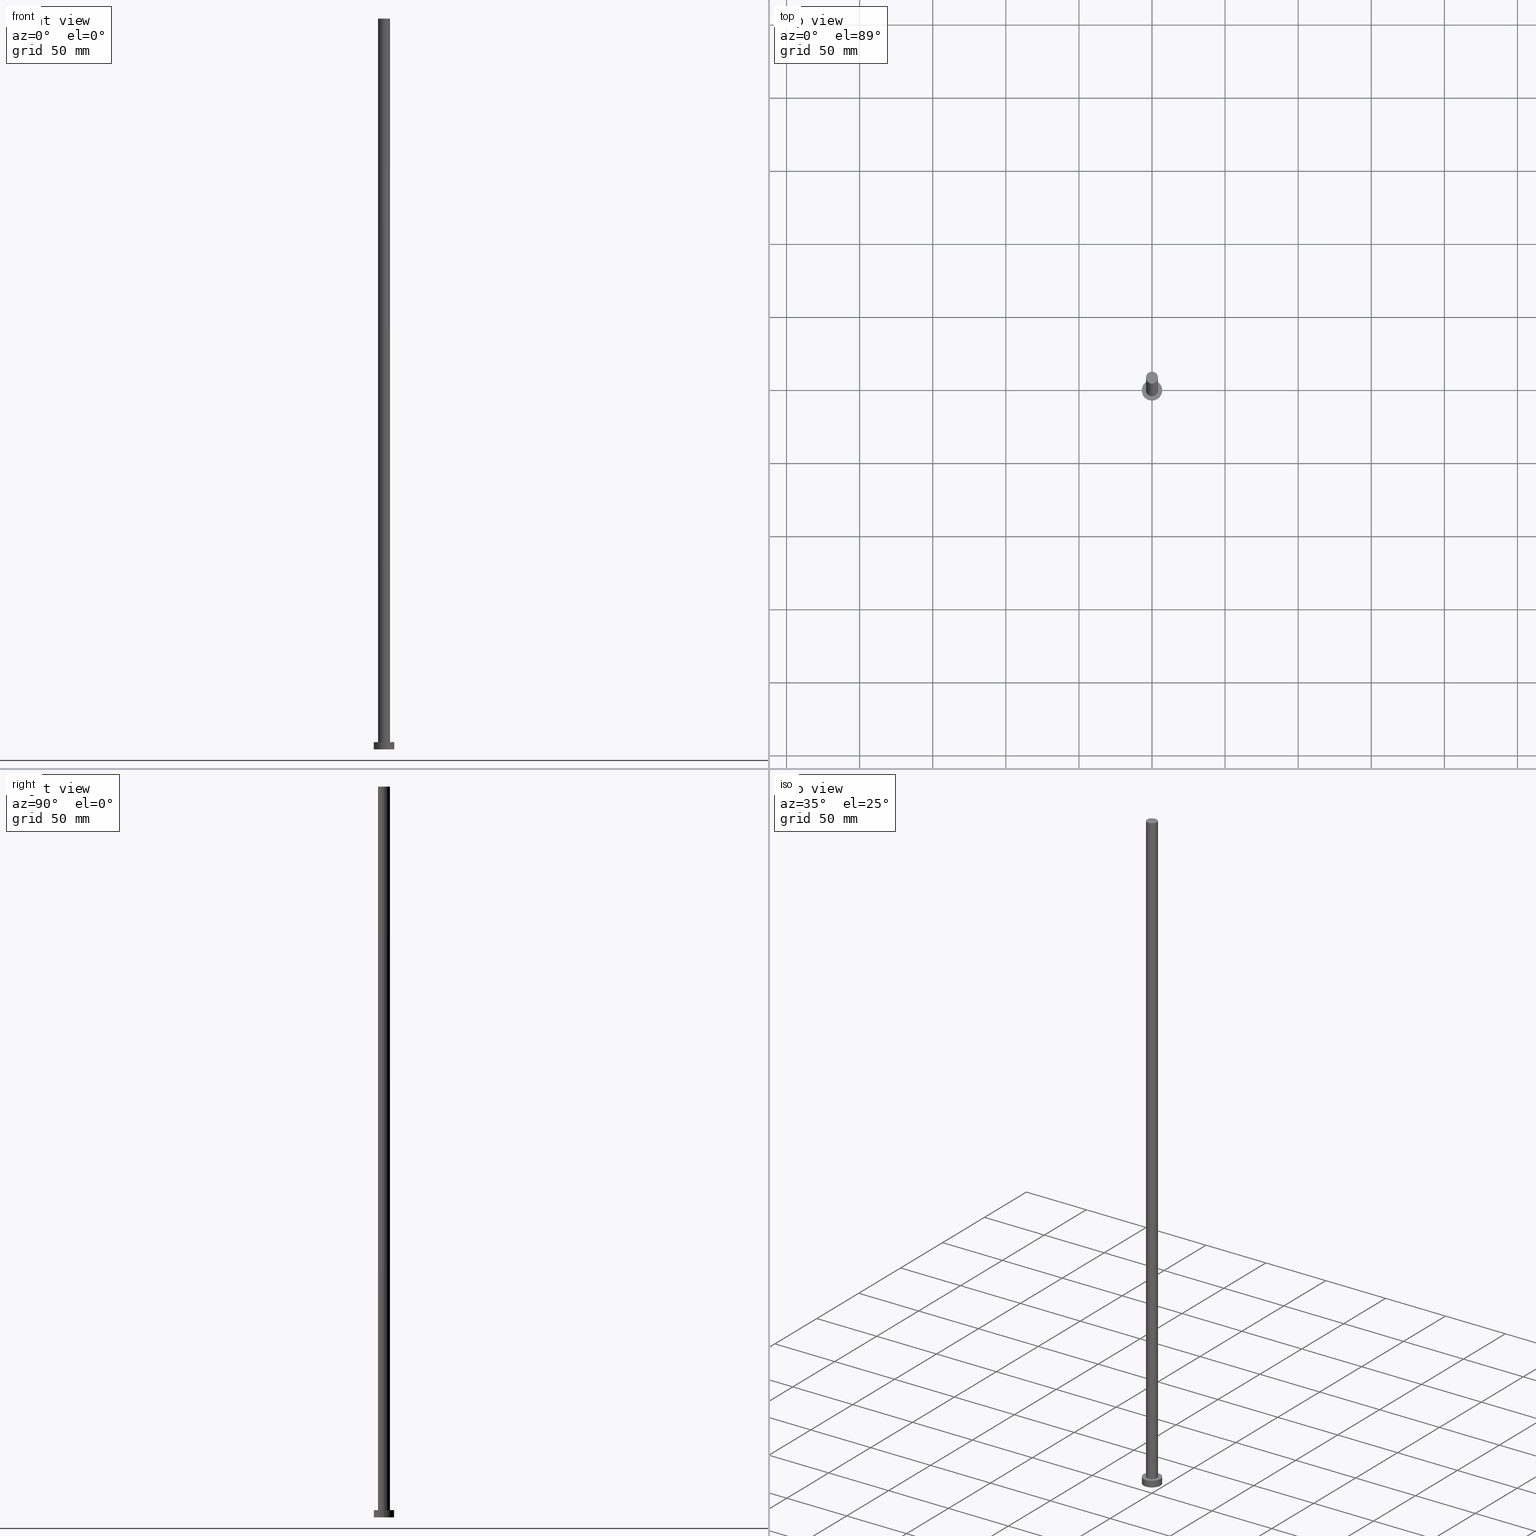
[diagram: canonical four-view strip — front | top / right | iso, engineering-drawing reading convention]
A machine part, canonical four-view strip (front | top / right | iso — engineering-drawing reading convention). The complete STEP part file that produces these views, byte-faithful:
ISO-10303-21;
HEADER;
FILE_DESCRIPTION (( 'STEP AP203' ),
    '1' );
FILE_NAME ('2462.STEP',
    '2023-02-13T14:20:28',
    ( '' ),
    ( '' ),
    'SwSTEP 2.0',
    'SolidWorks 2019',
    '' );
FILE_SCHEMA (( 'CONFIG_CONTROL_DESIGN' ));
ENDSEC;

DATA;
#1 = AXIS2_PLACEMENT_3D ( 'NONE', #229, #211, #12 ) ;
#2 = DIRECTION ( 'NONE',  ( -0.000000000000000000, -0.000000000000000000, -1.000000000000000000 ) ) ;
#3 = EDGE_CURVE ( 'NONE', #236, #104, #111, .T. ) ;
#4 = ORIENTED_EDGE ( 'NONE', *, *, #203, .F. ) ;
#5 = CARTESIAN_POINT ( 'NONE',  ( -4.099999999999999645, 0.000000000000000000, 5.000000000000000000 ) ) ;
#6 = VERTEX_POINT ( 'NONE', #63 ) ;
#7 = DIRECTION ( 'NONE',  ( 1.000000000000000000, 0.000000000000000000, 0.000000000000000000 ) ) ;
#8 = EDGE_CURVE ( 'NONE', #139, #104, #251, .T. ) ;
#9 = FACE_OUTER_BOUND ( 'NONE', #205, .T. ) ;
#10 = CARTESIAN_POINT ( 'NONE',  ( 0.000000000000000000, 0.000000000000000000, 500.0000000000000000 ) ) ;
#11 = ORIENTED_EDGE ( 'NONE', *, *, #99, .F. ) ;
#12 = DIRECTION ( 'NONE',  ( 1.000000000000000000, 0.000000000000000000, 0.000000000000000000 ) ) ;
#13 = PRODUCT ( '2462', '2462', '', ( #18 ) ) ;
#14 = APPROVAL_DATE_TIME ( #228, #135 ) ;
#15 = APPLICATION_PROTOCOL_DEFINITION ( 'international standard', 'config_control_design', 1994, #34 ) ;
#16 = PRODUCT_DEFINITION_SHAPE ( 'NONE', 'NONE',  #35 ) ;
#17 = COORDINATED_UNIVERSAL_TIME_OFFSET ( 1, 0, .AHEAD. ) ;
#18 = MECHANICAL_CONTEXT ( 'NONE', #34, 'mechanical' ) ;
#19 = AXIS2_PLACEMENT_3D ( 'NONE', #164, #244, #128 ) ;
#20 = PERSON_AND_ORGANIZATION ( #24, #101 ) ;
#21 = AXIS2_PLACEMENT_3D ( 'NONE', #112, #91, #242 ) ;
#22 = ORIENTED_EDGE ( 'NONE', *, *, #198, .T. ) ;
#23 = EDGE_LOOP ( 'NONE', ( #26, #246 ) ) ;
#24 = PERSON ( 'NEUR�EN�', 'NEUR�EN�', 'NEUR�EN�', ('NEUR�EN�'), ('NEUR�EN�'), ('NEUR�EN�') ) ;
#25 = CARTESIAN_POINT ( 'NONE',  ( 0.000000000000000000, 0.000000000000000000, 0.000000000000000000 ) ) ;
#26 = ORIENTED_EDGE ( 'NONE', *, *, #166, .T. ) ;
#27 = CARTESIAN_POINT ( 'NONE',  ( -4.099999999999999645, 0.000000000000000000, 500.0000000000000000 ) ) ;
#28 = ORIENTED_EDGE ( 'NONE', *, *, #240, .T. ) ;
#29 = DIRECTION ( 'NONE',  ( -1.000000000000000000, 0.000000000000000000, 0.000000000000000000 ) ) ;
#30 = EDGE_LOOP ( 'NONE', ( #11, #201, #130, #143 ) ) ;
#31 = CARTESIAN_POINT ( 'NONE',  ( 7.000000000000000000, 8.572527594031473190E-16, 5.000000000000000000 ) ) ;
#32 = DIRECTION ( 'NONE',  ( 1.000000000000000000, 0.000000000000000000, 0.000000000000000000 ) ) ;
#33 = ADVANCED_FACE ( 'NONE', ( #185 ), #66, .T. ) ;
#34 = APPLICATION_CONTEXT ( 'configuration controlled 3d designs of mechanical parts and assemblies' ) ;
#35 = PRODUCT_DEFINITION ( 'NEZN�M�', '', #83, #61 ) ;
#36 = APPROVAL_ROLE ( '' ) ;
#37 =( GEOMETRIC_REPRESENTATION_CONTEXT ( 3 ) GLOBAL_UNCERTAINTY_ASSIGNED_CONTEXT ( ( #218 ) ) GLOBAL_UNIT_ASSIGNED_CONTEXT ( ( #147, #115, #152 ) ) REPRESENTATION_CONTEXT ( 'NONE', 'WORKASPACE' ) );
#38 = ADVANCED_FACE ( 'NONE', ( #9 ), #199, .T. ) ;
#39 = CARTESIAN_POINT ( 'NONE',  ( 0.000000000000000000, 0.000000000000000000, 5.000000000000000000 ) ) ;
#40 = VERTEX_POINT ( 'NONE', #82 ) ;
#41 = CARTESIAN_POINT ( 'NONE',  ( 0.000000000000000000, 0.000000000000000000, 0.000000000000000000 ) ) ;
#42 = CIRCLE ( 'NONE', #181, 7.000000000000000000 ) ;
#43 = CC_DESIGN_SECURITY_CLASSIFICATION ( #58, ( #83 ) ) ;
#44 = EDGE_LOOP ( 'NONE', ( #126, #221 ) ) ;
#45 = CYLINDRICAL_SURFACE ( 'NONE', #21, 7.000000000000000000 ) ;
#46 = VERTEX_POINT ( 'NONE', #160 ) ;
#47 = DIRECTION ( 'NONE',  ( -1.000000000000000000, 0.000000000000000000, 0.000000000000000000 ) ) ;
#48 = AXIS2_PLACEMENT_3D ( 'NONE', #224, #114, #138 ) ;
#49 = ADVANCED_BREP_SHAPE_REPRESENTATION ( '2462', ( #196, #237 ), #37 ) ;
#50 = DIRECTION ( 'NONE',  ( 0.000000000000000000, 0.000000000000000000, 1.000000000000000000 ) ) ;
#51 = APPROVAL_PERSON_ORGANIZATION ( #20, #106, #36 ) ;
#52 = PERSON_AND_ORGANIZATION_ROLE ( 'design_owner' ) ;
#53 = APPROVAL_DATE_TIME ( #77, #253 ) ;
#54 = DATE_AND_TIME ( #232, #215 ) ;
#55 = CC_DESIGN_DATE_AND_TIME_ASSIGNMENT ( #54, #235, ( #35 ) ) ;
#56 = VECTOR ( 'NONE', #182, 1000.000000000000000 ) ;
#57 = PERSON_AND_ORGANIZATION_ROLE ( 'creator' ) ;
#58 = SECURITY_CLASSIFICATION ( '', '', #212 ) ;
#59 = VECTOR ( 'NONE', #248, 1000.000000000000000 ) ;
#60 = AXIS2_PLACEMENT_3D ( 'NONE', #39, #150, #169 ) ;
#61 = DESIGN_CONTEXT ( 'detailed design', #76, 'design' ) ;
#62 = PERSON_AND_ORGANIZATION ( #24, #101 ) ;
#63 = CARTESIAN_POINT ( 'NONE',  ( 7.000000000000000000, 8.572527594031473190E-16, 0.000000000000000000 ) ) ;
#64 = EDGE_LOOP ( 'NONE', ( #4, #183 ) ) ;
#65 = DIRECTION ( 'NONE',  ( 1.000000000000000000, 0.000000000000000000, 0.000000000000000000 ) ) ;
#66 = PLANE ( 'NONE',  #48 ) ;
#67 = AXIS2_PLACEMENT_3D ( 'NONE', #187, #2, #141 ) ;
#68 = CARTESIAN_POINT ( 'NONE',  ( 0.000000000000000000, 0.000000000000000000, 5.000000000000000000 ) ) ;
#69 = ORIENTED_EDGE ( 'NONE', *, *, #3, .T. ) ;
#70 = PLANE ( 'NONE',  #197 ) ;
#71 = ORIENTED_EDGE ( 'NONE', *, *, #144, .F. ) ;
#72 = CARTESIAN_POINT ( 'NONE',  ( -7.000000000000000000, 0.000000000000000000, 0.000000000000000000 ) ) ;
#73 = CARTESIAN_POINT ( 'NONE',  ( 0.000000000000000000, 0.000000000000000000, 5.000000000000000000 ) ) ;
#74 = APPROVAL_ROLE ( '' ) ;
#75 = ADVANCED_FACE ( 'NONE', ( #238, #227 ), #151, .T. ) ;
#76 = APPLICATION_CONTEXT ( 'configuration controlled 3d designs of mechanical parts and assemblies' ) ;
#77 = DATE_AND_TIME ( #193, #247 ) ;
#78 = PERSON_AND_ORGANIZATION_ROLE ( 'creator' ) ;
#79 = PERSON_AND_ORGANIZATION ( #24, #101 ) ;
#80 = AXIS2_PLACEMENT_3D ( 'NONE', #186, #161, #29 ) ;
#81 = CC_DESIGN_PERSON_AND_ORGANIZATION_ASSIGNMENT ( #175, #52, ( #13 ) ) ;
#82 = CARTESIAN_POINT ( 'NONE',  ( -7.000000000000000000, 0.000000000000000000, 5.000000000000000000 ) ) ;
#83 = PRODUCT_DEFINITION_FORMATION_WITH_SPECIFIED_SOURCE ( 'LIBOVOLN�', '', #13, .NOT_KNOWN. ) ;
#84 = FACE_OUTER_BOUND ( 'NONE', #109, .T. ) ;
#85 = ORIENTED_EDGE ( 'NONE', *, *, #99, .T. ) ;
#86 = COORDINATED_UNIVERSAL_TIME_OFFSET ( 1, 0, .AHEAD. ) ;
#87 = DIRECTION ( 'NONE',  ( 0.000000000000000000, 0.000000000000000000, 1.000000000000000000 ) ) ;
#88 = PRODUCT_RELATED_PRODUCT_CATEGORY ( 'detail', '', ( #13 ) ) ;
#89 = ORIENTED_EDGE ( 'NONE', *, *, #3, .F. ) ;
#90 = DIRECTION ( 'NONE',  ( -0.000000000000000000, -0.000000000000000000, -1.000000000000000000 ) ) ;
#91 = DIRECTION ( 'NONE',  ( -0.000000000000000000, -0.000000000000000000, -1.000000000000000000 ) ) ;
#92 = DIRECTION ( 'NONE',  ( 0.000000000000000000, 0.000000000000000000, 1.000000000000000000 ) ) ;
#93 = CC_DESIGN_PERSON_AND_ORGANIZATION_ASSIGNMENT ( #79, #78, ( #35 ) ) ;
#94 = DIRECTION ( 'NONE',  ( -0.000000000000000000, -0.000000000000000000, -1.000000000000000000 ) ) ;
#95 = APPROVAL_ROLE ( '' ) ;
#96 = CARTESIAN_POINT ( 'NONE',  ( 0.000000000000000000, 0.000000000000000000, 0.000000000000000000 ) ) ;
#97 = PERSON_AND_ORGANIZATION ( #24, #101 ) ;
#98 = APPROVAL_DATE_TIME ( #100, #106 ) ;
#99 = EDGE_CURVE ( 'NONE', #223, #6, #249, .T. ) ;
#100 = DATE_AND_TIME ( #190, #202 ) ;
#101 = ORGANIZATION ( 'NEUR�EN�', 'NEUR�EN�', '' ) ;
#102 = VECTOR ( 'NONE', #94, 1000.000000000000000 ) ;
#103 = CC_DESIGN_DATE_AND_TIME_ASSIGNMENT ( #174, #192, ( #58 ) ) ;
#104 = VERTEX_POINT ( 'NONE', #206 ) ;
#105 = ORIENTED_EDGE ( 'NONE', *, *, #198, .F. ) ;
#106 = APPROVAL ( #254, 'NEUR�EN�' ) ;
#107 = APPROVAL_PERSON_ORGANIZATION ( #62, #135, #74 ) ;
#108 = DIRECTION ( 'NONE',  ( 1.000000000000000000, 0.000000000000000000, -0.000000000000000000 ) ) ;
#109 = EDGE_LOOP ( 'NONE', ( #71, #85, #28, #149 ) ) ;
#110 = CARTESIAN_POINT ( 'NONE',  ( -7.000000000000000000, 0.000000000000000000, 5.000000000000000000 ) ) ;
#111 = LINE ( 'NONE', #241, #207 ) ;
#112 = CARTESIAN_POINT ( 'NONE',  ( 0.000000000000000000, 0.000000000000000000, 5.000000000000000000 ) ) ;
#113 = ADVANCED_FACE ( 'NONE', ( #84 ), #140, .T. ) ;
#114 = DIRECTION ( 'NONE',  ( 0.000000000000000000, 0.000000000000000000, 1.000000000000000000 ) ) ;
#115 =( NAMED_UNIT ( * ) PLANE_ANGLE_UNIT ( ) SI_UNIT ( $, .RADIAN. ) );
#116 = DIRECTION ( 'NONE',  ( 1.000000000000000000, 0.000000000000000000, 0.000000000000000000 ) ) ;
#117 = CIRCLE ( 'NONE', #1, 7.000000000000000000 ) ;
#118 = APPLICATION_PROTOCOL_DEFINITION ( 'international standard', 'config_control_design', 1994, #76 ) ;
#119 = CC_DESIGN_APPROVAL ( #253, ( #58 ) ) ;
#120 = DIRECTION ( 'NONE',  ( 1.000000000000000000, 0.000000000000000000, 0.000000000000000000 ) ) ;
#121 = CLOSED_SHELL ( 'NONE', ( #225, #113, #177, #75, #172, #38, #33 ) ) ;
#122 = CIRCLE ( 'NONE', #156, 7.000000000000000000 ) ;
#123 = EDGE_LOOP ( 'NONE', ( #208, #179 ) ) ;
#124 = ORIENTED_EDGE ( 'NONE', *, *, #8, .T. ) ;
#125 = LINE ( 'NONE', #27, #56 ) ;
#126 = ORIENTED_EDGE ( 'NONE', *, *, #8, .F. ) ;
#127 = DIRECTION ( 'NONE',  ( 0.000000000000000000, 0.000000000000000000, 1.000000000000000000 ) ) ;
#128 = DIRECTION ( 'NONE',  ( 1.000000000000000000, 0.000000000000000000, 0.000000000000000000 ) ) ;
#129 = EDGE_CURVE ( 'NONE', #236, #46, #188, .T. ) ;
#130 = ORIENTED_EDGE ( 'NONE', *, *, #153, .T. ) ;
#131 = CARTESIAN_POINT ( 'NONE',  ( 0.000000000000000000, 0.000000000000000000, 500.0000000000000000 ) ) ;
#132 = CC_DESIGN_PERSON_AND_ORGANIZATION_ASSIGNMENT ( #97, #189, ( #58 ) ) ;
#133 = SHAPE_DEFINITION_REPRESENTATION ( #16, #49 ) ;
#134 = AXIS2_PLACEMENT_3D ( 'NONE', #131, #184, #32 ) ;
#135 = APPROVAL ( #137, 'NEUR�EN�' ) ;
#136 = LOCAL_TIME ( 15, 20, 28.00000000000000000, #86 ) ;
#137 = APPROVAL_STATUS ( 'not_yet_approved' ) ;
#138 = DIRECTION ( 'NONE',  ( 1.000000000000000000, 0.000000000000000000, -0.000000000000000000 ) ) ;
#139 = VERTEX_POINT ( 'NONE', #5 ) ;
#140 = CYLINDRICAL_SURFACE ( 'NONE', #80, 7.000000000000000000 ) ;
#141 = DIRECTION ( 'NONE',  ( -1.000000000000000000, 0.000000000000000000, 0.000000000000000000 ) ) ;
#142 = DIRECTION ( 'NONE',  ( 1.000000000000000000, 0.000000000000000000, 0.000000000000000000 ) ) ;
#143 = ORIENTED_EDGE ( 'NONE', *, *, #203, .T. ) ;
#144 = EDGE_CURVE ( 'NONE', #223, #40, #117, .T. ) ;
#145 = CALENDAR_DATE ( 2023, 13, 2 ) ;
#146 = CIRCLE ( 'NONE', #60, 4.099999999999999645 ) ;
#147 =( LENGTH_UNIT ( ) NAMED_UNIT ( * ) SI_UNIT ( .MILLI., .METRE. ) );
#148 = CC_DESIGN_APPROVAL ( #135, ( #83 ) ) ;
#149 = ORIENTED_EDGE ( 'NONE', *, *, #153, .F. ) ;
#150 = DIRECTION ( 'NONE',  ( 0.000000000000000000, 0.000000000000000000, 1.000000000000000000 ) ) ;
#151 = PLANE ( 'NONE',  #178 ) ;
#152 =( NAMED_UNIT ( * ) SI_UNIT ( $, .STERADIAN. ) SOLID_ANGLE_UNIT ( ) );
#153 = EDGE_CURVE ( 'NONE', #40, #162, #219, .T. ) ;
#154 = COORDINATED_UNIVERSAL_TIME_OFFSET ( 1, 0, .AHEAD. ) ;
#155 = COORDINATED_UNIVERSAL_TIME_OFFSET ( 1, 0, .AHEAD. ) ;
#156 = AXIS2_PLACEMENT_3D ( 'NONE', #68, #127, #142 ) ;
#157 = PERSON_AND_ORGANIZATION ( #24, #101 ) ;
#158 = APPROVAL_PERSON_ORGANIZATION ( #173, #253, #95 ) ;
#159 = ORIENTED_EDGE ( 'NONE', *, *, #166, .F. ) ;
#160 = CARTESIAN_POINT ( 'NONE',  ( -4.099999999999999645, 0.000000000000000000, 500.0000000000000000 ) ) ;
#161 = DIRECTION ( 'NONE',  ( -0.000000000000000000, -0.000000000000000000, -1.000000000000000000 ) ) ;
#162 = VERTEX_POINT ( 'NONE', #72 ) ;
#163 = CARTESIAN_POINT ( 'NONE',  ( 7.000000000000000000, 8.572527594031473190E-16, 5.000000000000000000 ) ) ;
#164 = CARTESIAN_POINT ( 'NONE',  ( 0.000000000000000000, 0.000000000000000000, 5.000000000000000000 ) ) ;
#165 = CARTESIAN_POINT ( 'NONE',  ( 0.000000000000000000, 0.000000000000000000, 0.000000000000000000 ) ) ;
#166 = EDGE_CURVE ( 'NONE', #46, #236, #243, .T. ) ;
#167 = EDGE_LOOP ( 'NONE', ( #180, #69, #200, #105 ) ) ;
#168 = LOCAL_TIME ( 15, 20, 28.00000000000000000, #17 ) ;
#169 = DIRECTION ( 'NONE',  ( 1.000000000000000000, 0.000000000000000000, 0.000000000000000000 ) ) ;
#170 = DIRECTION ( 'NONE',  ( 1.000000000000000000, 0.000000000000000000, -0.000000000000000000 ) ) ;
#171 = FACE_OUTER_BOUND ( 'NONE', #167, .T. ) ;
#172 = ADVANCED_FACE ( 'NONE', ( #239 ), #70, .F. ) ;
#173 = PERSON_AND_ORGANIZATION ( #24, #101 ) ;
#174 = DATE_AND_TIME ( #210, #168 ) ;
#175 = PERSON_AND_ORGANIZATION ( #24, #101 ) ;
#176 = CC_DESIGN_PERSON_AND_ORGANIZATION_ASSIGNMENT ( #233, #57, ( #83 ) ) ;
#177 = ADVANCED_FACE ( 'NONE', ( #226 ), #45, .T. ) ;
#178 = AXIS2_PLACEMENT_3D ( 'NONE', #73, #92, #170 ) ;
#179 = ORIENTED_EDGE ( 'NONE', *, *, #144, .T. ) ;
#180 = ORIENTED_EDGE ( 'NONE', *, *, #129, .F. ) ;
#181 = AXIS2_PLACEMENT_3D ( 'NONE', #165, #245, #116 ) ;
#182 = DIRECTION ( 'NONE',  ( -0.000000000000000000, -0.000000000000000000, -1.000000000000000000 ) ) ;
#183 = ORIENTED_EDGE ( 'NONE', *, *, #240, .F. ) ;
#184 = DIRECTION ( 'NONE',  ( 0.000000000000000000, 0.000000000000000000, 1.000000000000000000 ) ) ;
#185 = FACE_OUTER_BOUND ( 'NONE', #23, .T. ) ;
#186 = CARTESIAN_POINT ( 'NONE',  ( 0.000000000000000000, 0.000000000000000000, 5.000000000000000000 ) ) ;
#187 = CARTESIAN_POINT ( 'NONE',  ( 0.000000000000000000, 0.000000000000000000, 500.0000000000000000 ) ) ;
#188 = CIRCLE ( 'NONE', #220, 4.099999999999999645 ) ;
#189 = PERSON_AND_ORGANIZATION_ROLE ( 'classification_officer' ) ;
#190 = CALENDAR_DATE ( 2023, 13, 2 ) ;
#191 = EDGE_CURVE ( 'NONE', #104, #139, #146, .T. ) ;
#192 = DATE_TIME_ROLE ( 'classification_date' ) ;
#193 = CALENDAR_DATE ( 2023, 13, 2 ) ;
#194 = DIRECTION ( 'NONE',  ( 0.000000000000000000, 0.000000000000000000, 1.000000000000000000 ) ) ;
#195 = CC_DESIGN_APPROVAL ( #106, ( #35 ) ) ;
#196 = MANIFOLD_SOLID_BREP ( 'P�idat vysunut�m3', #121 ) ;
#197 = AXIS2_PLACEMENT_3D ( 'NONE', #25, #209, #108 ) ;
#198 = EDGE_CURVE ( 'NONE', #46, #139, #125, .T. ) ;
#199 = CYLINDRICAL_SURFACE ( 'NONE', #67, 4.099999999999999645 ) ;
#200 = ORIENTED_EDGE ( 'NONE', *, *, #191, .T. ) ;
#201 = ORIENTED_EDGE ( 'NONE', *, *, #214, .F. ) ;
#202 = LOCAL_TIME ( 15, 20, 28.00000000000000000, #155 ) ;
#203 = EDGE_CURVE ( 'NONE', #162, #6, #231, .T. ) ;
#204 = CARTESIAN_POINT ( 'NONE',  ( 4.099999999999999645, 5.021051876504147385E-16, 500.0000000000000000 ) ) ;
#205 = EDGE_LOOP ( 'NONE', ( #89, #159, #22, #124 ) ) ;
#206 = CARTESIAN_POINT ( 'NONE',  ( 4.099999999999999645, 5.021051876504147385E-16, 5.000000000000000000 ) ) ;
#207 = VECTOR ( 'NONE', #217, 1000.000000000000000 ) ;
#208 = ORIENTED_EDGE ( 'NONE', *, *, #214, .T. ) ;
#209 = DIRECTION ( 'NONE',  ( 0.000000000000000000, 0.000000000000000000, 1.000000000000000000 ) ) ;
#210 = CALENDAR_DATE ( 2023, 13, 2 ) ;
#211 = DIRECTION ( 'NONE',  ( 0.000000000000000000, 0.000000000000000000, 1.000000000000000000 ) ) ;
#212 = SECURITY_CLASSIFICATION_LEVEL ( 'unclassified' ) ;
#213 = PERSON_AND_ORGANIZATION_ROLE ( 'design_supplier' ) ;
#214 = EDGE_CURVE ( 'NONE', #40, #223, #122, .T. ) ;
#215 = LOCAL_TIME ( 15, 20, 28.00000000000000000, #154 ) ;
#216 = AXIS2_PLACEMENT_3D ( 'NONE', #222, #90, #47 ) ;
#217 = DIRECTION ( 'NONE',  ( -0.000000000000000000, -0.000000000000000000, -1.000000000000000000 ) ) ;
#218 = UNCERTAINTY_MEASURE_WITH_UNIT (LENGTH_MEASURE( 1.000000000000000082E-05 ), #147, 'distance_accuracy_value', 'NONE');
#219 = LINE ( 'NONE', #110, #102 ) ;
#220 = AXIS2_PLACEMENT_3D ( 'NONE', #10, #50, #65 ) ;
#221 = ORIENTED_EDGE ( 'NONE', *, *, #191, .F. ) ;
#222 = CARTESIAN_POINT ( 'NONE',  ( 0.000000000000000000, 0.000000000000000000, 500.0000000000000000 ) ) ;
#223 = VERTEX_POINT ( 'NONE', #163 ) ;
#224 = CARTESIAN_POINT ( 'NONE',  ( 0.000000000000000000, 0.000000000000000000, 500.0000000000000000 ) ) ;
#225 = ADVANCED_FACE ( 'NONE', ( #171 ), #250, .T. ) ;
#226 = FACE_OUTER_BOUND ( 'NONE', #30, .T. ) ;
#227 = FACE_OUTER_BOUND ( 'NONE', #123, .T. ) ;
#228 = DATE_AND_TIME ( #145, #136 ) ;
#229 = CARTESIAN_POINT ( 'NONE',  ( 0.000000000000000000, 0.000000000000000000, 5.000000000000000000 ) ) ;
#230 = APPROVAL_STATUS ( 'not_yet_approved' ) ;
#231 = CIRCLE ( 'NONE', #234, 7.000000000000000000 ) ;
#232 = CALENDAR_DATE ( 2023, 13, 2 ) ;
#233 = PERSON_AND_ORGANIZATION ( #24, #101 ) ;
#234 = AXIS2_PLACEMENT_3D ( 'NONE', #41, #87, #7 ) ;
#235 = DATE_TIME_ROLE ( 'creation_date' ) ;
#236 = VERTEX_POINT ( 'NONE', #204 ) ;
#237 = AXIS2_PLACEMENT_3D ( 'NONE', #96, #194, #120 ) ;
#238 = FACE_BOUND ( 'NONE', #44, .T. ) ;
#239 = FACE_OUTER_BOUND ( 'NONE', #64, .T. ) ;
#240 = EDGE_CURVE ( 'NONE', #6, #162, #42, .T. ) ;
#241 = CARTESIAN_POINT ( 'NONE',  ( 4.099999999999999645, 5.021051876504147385E-16, 500.0000000000000000 ) ) ;
#242 = DIRECTION ( 'NONE',  ( -1.000000000000000000, 0.000000000000000000, 0.000000000000000000 ) ) ;
#243 = CIRCLE ( 'NONE', #134, 4.099999999999999645 ) ;
#244 = DIRECTION ( 'NONE',  ( 0.000000000000000000, 0.000000000000000000, 1.000000000000000000 ) ) ;
#245 = DIRECTION ( 'NONE',  ( 0.000000000000000000, 0.000000000000000000, 1.000000000000000000 ) ) ;
#246 = ORIENTED_EDGE ( 'NONE', *, *, #129, .T. ) ;
#247 = LOCAL_TIME ( 15, 20, 28.00000000000000000, #252 ) ;
#248 = DIRECTION ( 'NONE',  ( -0.000000000000000000, -0.000000000000000000, -1.000000000000000000 ) ) ;
#249 = LINE ( 'NONE', #31, #59 ) ;
#250 = CYLINDRICAL_SURFACE ( 'NONE', #216, 4.099999999999999645 ) ;
#251 = CIRCLE ( 'NONE', #19, 4.099999999999999645 ) ;
#252 = COORDINATED_UNIVERSAL_TIME_OFFSET ( 1, 0, .AHEAD. ) ;
#253 = APPROVAL ( #230, 'NEUR�EN�' ) ;
#254 = APPROVAL_STATUS ( 'not_yet_approved' ) ;
#255 = CC_DESIGN_PERSON_AND_ORGANIZATION_ASSIGNMENT ( #157, #213, ( #83 ) ) ;
ENDSEC;
END-ISO-10303-21;
